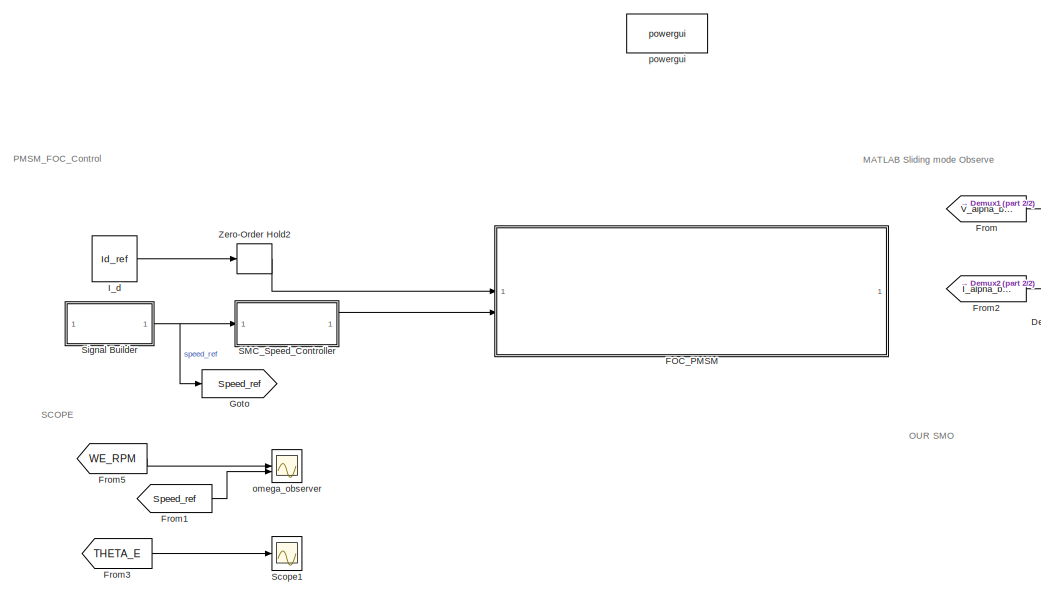
[diagram: root canvas - part 1/2, left side, full height]
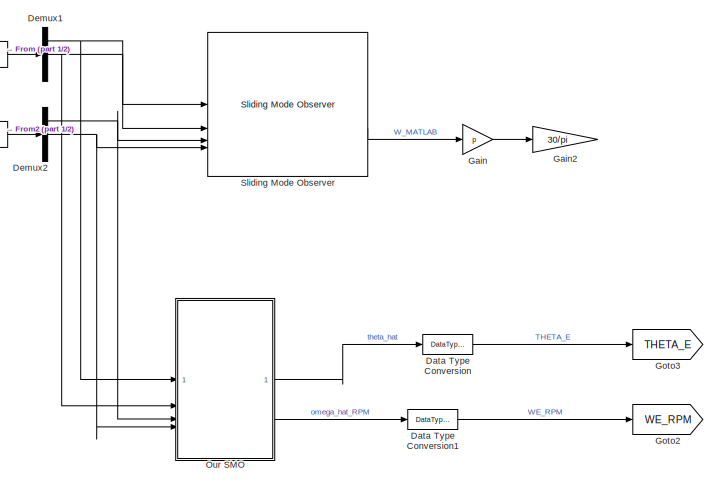
[diagram: root canvas - part 2/2, middle right region]
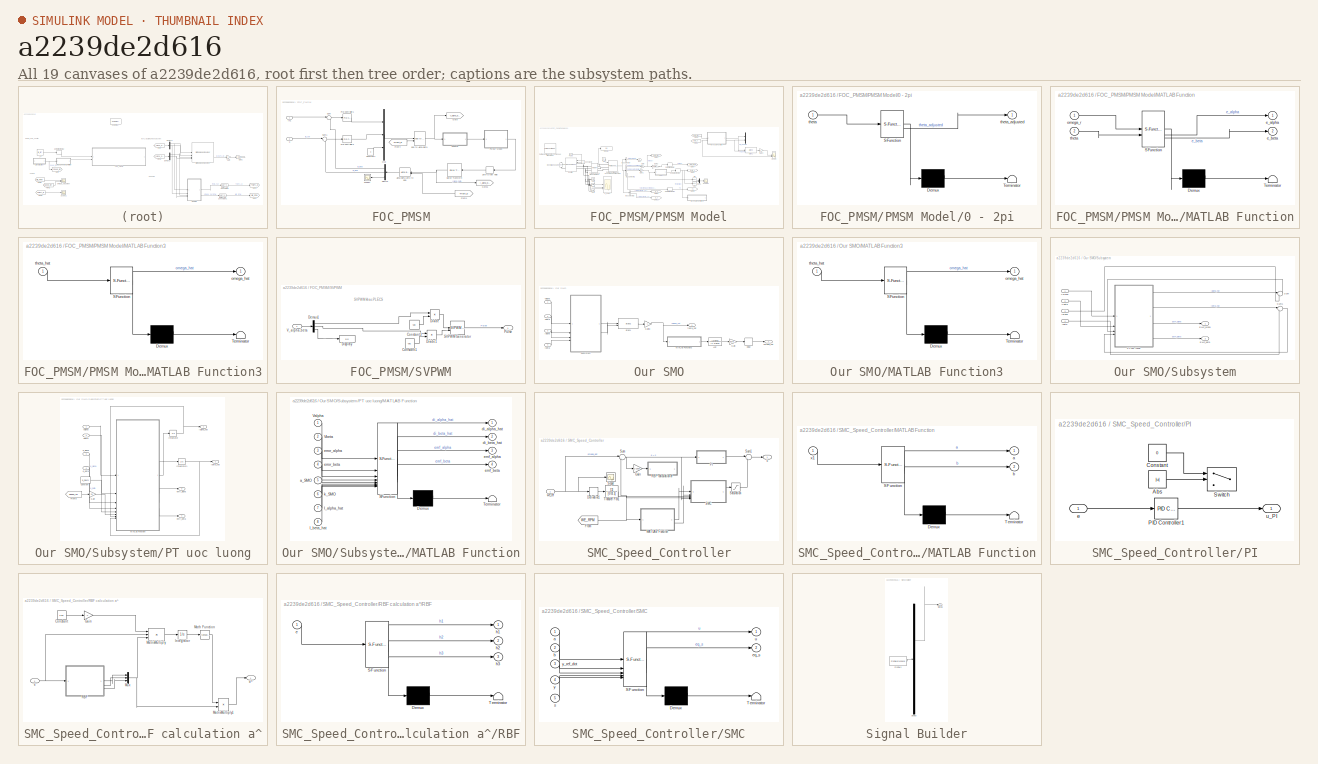
[diagram: thumbnail index - all 19 canvases of the model, root first then tree order]
MODEL slx_a2239de2d616
KIND model
CONFIG AbsTol = auto
CONFIG EnableMultiTasking = off
CONFIG FixedStep = 1e-5
CONFIG MaxStep = 1E-5
CONFIG MinStep = auto
CONFIG RelTol = 1e-4
CONFIG SampleTimeConstraint = Unconstrained
CONFIG SolverName = VariableStepAuto
CONFIG StartTime = 0.0
CONFIG StopTime = 4
BLOCK [DataTypeConversion] Data Type Conversion
  OutDataTypeStr = double
  RndMeth = Floor
  SaturateOnIntegerOverflow = off
BLOCK [DataTypeConversion] Data Type Conversion1
  OutDataTypeStr = double
  RndMeth = Floor
  SaturateOnIntegerOverflow = off
BLOCK [Demux] Demux1
  Outputs = 3
BLOCK [Demux] Demux2
  Outputs = 3
BLOCK [SubSystem] FOC_PMSM
BLOCK [Reference] FOC_PMSM/Alpha-Beta-Zero to dq0  REF=spsAlphaBetaZerotodq0Lib/Alpha-Beta-Zero
to dq0
  LibrarySourceBlock = sps_lib/Control/Alpha-Beta-Zero\nto dq0
  SourceBlock = spsAlphaBetaZerotodq0Lib/Alpha-Beta-Zero\nto dq0
  SourceType = Alpha-Beta-Zero to dq0 Transformation
BLOCK [Reference] FOC_PMSM/Clarke Transform  REF=eeTransforms/Clarke Transform
  LibrarySourceBlock = ee_sl_lib/Mathematical\nTransforms/Clarke Transform
  NameLocation = top
  SourceBlock = eeTransforms/Clarke Transform
  SourceType = Clarke Transform
BLOCK [Constant] FOC_PMSM/Constant1
  Value = 0
BLOCK [Demux] FOC_PMSM/Demux
  NameLocation = top
  Outputs = 3
BLOCK [From] FOC_PMSM/From1
  GotoTag = THETA_E
  NameLocation = top
  TagVisibility = global
BLOCK [From] FOC_PMSM/From4
  GotoTag = THETA_E
  TagVisibility = global
BLOCK [Goto] FOC_PMSM/Goto
  GotoTag = V_alpha_beta
  TagVisibility = global
BLOCK [Goto] FOC_PMSM/Goto1
  GotoTag = I_alpha_beta
  TagVisibility = global
BLOCK [Inport] FOC_PMSM/In1
BLOCK [Mux] FOC_PMSM/Mux
  DisplayOption = bar
  Inputs = 3
BLOCK [Reference] FOC_PMSM/PID Controller1  REF=slpidlib/PID Controller
  LibrarySourceBlock = simulink/Continuous/PID Controller
  SourceBlock = slpidlib/PID Controller
  SourceType = PID 1dof
BLOCK [Reference] FOC_PMSM/PID Controller3  REF=slpidlib/PID Controller
  LibrarySourceBlock = simulink/Continuous/PID Controller
  SourceBlock = slpidlib/PID Controller
  SourceType = PID 1dof
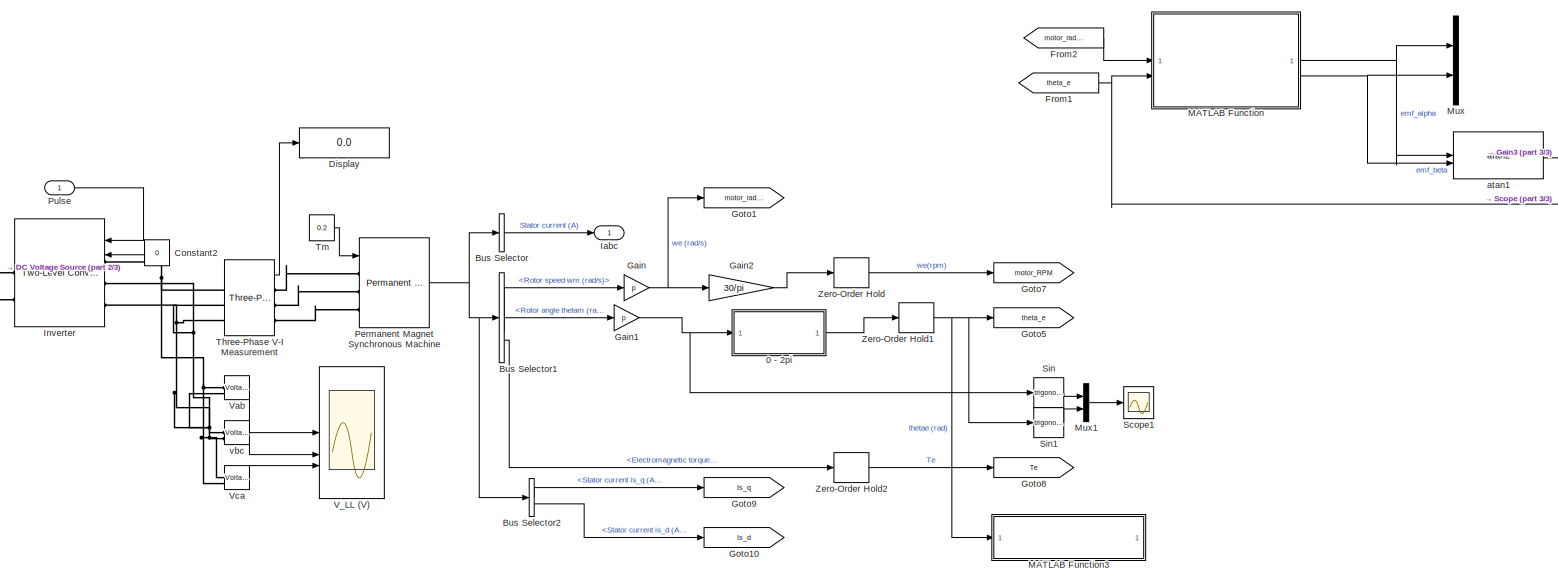
[diagram: FOC_PMSM/PMSM Model - part 1/3, most of the canvas]
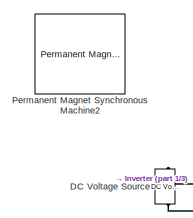
[diagram: FOC_PMSM/PMSM Model - part 2/3, middle left region]
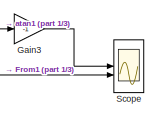
[diagram: FOC_PMSM/PMSM Model - part 3/3, middle right region]
BLOCK [SubSystem] FOC_PMSM/PMSM Model
BLOCK [SubSystem] FOC_PMSM/PMSM Model/0 - 2pi
  ErrorFcn = Stateflow.Translate.translate
  LibrarySourceBlock = simulink/User-Defined\nFunctions/MATLAB Function
  PermitHierarchicalResolution = ExplicitOnly
  SFBlockType = MATLAB Function
  TreatAsAtomicUnit = on
BLOCK [Demux] FOC_PMSM/PMSM Model/0 - 2pi/ Demux 
  Outputs = 1
BLOCK [S-Function] FOC_PMSM/PMSM Model/0 - 2pi/ SFunction 
  EnableBusSupport = on
  FunctionName = sf_sfun
  PortCounts = [1 2]
  SFcnIsStateOwnerBlock = off
  SFunctionDeploymentMode = off
  Tag = Stateflow S-Function 5
BLOCK [Terminator] FOC_PMSM/PMSM Model/0 - 2pi/ Terminator 
BLOCK [Inport] FOC_PMSM/PMSM Model/0 - 2pi/theta
BLOCK [Outport] FOC_PMSM/PMSM Model/0 - 2pi/theta_adjusted
BLOCK [BusSelector] FOC_PMSM/PMSM Model/Bus Selector
  OutputAsBus = on
  OutputSignals = Stator current is_a (A),Stator current is_b (A),Stator current is_c (A)
BLOCK [BusSelector] FOC_PMSM/PMSM Model/Bus Selector1
  OutputSignals = Rotor speed wm (rad/s),Rotor angle thetam (rad),Electromagnetic torque Te (N*m)
BLOCK [BusSelector] FOC_PMSM/PMSM Model/Bus Selector2
  OutputSignals = Stator current is_q (A),Stator current is_d (A)
BLOCK [Constant] FOC_PMSM/PMSM Model/Constant2
  NameLocation = top
  Value = 0
BLOCK [Reference] FOC_PMSM/PMSM Model/DC Voltage Source    REF=spsDCVoltageSourceLib/DC Voltage Source
  NameLocation = right
  SourceBlock = spsDCVoltageSourceLib/DC Voltage Source
  SourceType = DC Voltage Source
BLOCK [Display] FOC_PMSM/PMSM Model/Display
  Decimation = 1
BLOCK [From] FOC_PMSM/PMSM Model/From1
  GotoTag = theta_e
  TagVisibility = global
BLOCK [From] FOC_PMSM/PMSM Model/From2
  GotoTag = motor_rad_p_s
  TagVisibility = global
BLOCK [Gain] FOC_PMSM/PMSM Model/Gain
  Gain = p
  OutDataTypeStr = Inherit: Same as input
  ParamDataTypeStr = Inherit: Same as input
  SaturateOnIntegerOverflow = on
BLOCK [Gain] FOC_PMSM/PMSM Model/Gain1
  Gain = p
  OutDataTypeStr = Inherit: Same as input
  ParamDataTypeStr = Inherit: Same as input
  SaturateOnIntegerOverflow = on
BLOCK [Gain] FOC_PMSM/PMSM Model/Gain2
  Gain = 30/pi
  OutDataTypeStr = Inherit: Same as input
  ParamDataTypeStr = Inherit: Same as input
  SaturateOnIntegerOverflow = on
BLOCK [Gain] FOC_PMSM/PMSM Model/Gain3
  Gain = -1
BLOCK [Goto] FOC_PMSM/PMSM Model/Goto1
  GotoTag = motor_rad_p_s
  TagVisibility = global
BLOCK [Goto] FOC_PMSM/PMSM Model/Goto10
  GotoTag = Is_d
  TagVisibility = global
BLOCK [Goto] FOC_PMSM/PMSM Model/Goto5
  GotoTag = theta_e
  TagVisibility = global
BLOCK [Goto] FOC_PMSM/PMSM Model/Goto7
  GotoTag = motor_RPM
  TagVisibility = global
BLOCK [Goto] FOC_PMSM/PMSM Model/Goto8
  GotoTag = Te
  TagVisibility = global
BLOCK [Goto] FOC_PMSM/PMSM Model/Goto9
  GotoTag = Is_q
  TagVisibility = global
BLOCK [Outport] FOC_PMSM/PMSM Model/Iabc
BLOCK [Reference] FOC_PMSM/PMSM Model/Inverter  REF=spsTwoLevelConverterLib/Two-Level Converter
  LibrarySourceBlock = sps_lib/Power Electronics/Two-Level Converter
  SourceBlock = spsTwoLevelConverterLib/Two-Level Converter
  SourceType = Two-Level Converter
BLOCK [SubSystem] FOC_PMSM/PMSM Model/MATLAB Function
  ErrorFcn = Stateflow.Translate.translate
  LibrarySourceBlock = simulink/User-Defined\nFunctions/MATLAB Function
  PermitHierarchicalResolution = ExplicitOnly
  SFBlockType = MATLAB Function
  TreatAsAtomicUnit = on
BLOCK [Demux] FOC_PMSM/PMSM Model/MATLAB Function/ Demux 
  Outputs = 1
BLOCK [S-Function] FOC_PMSM/PMSM Model/MATLAB Function/ SFunction 
  EnableBusSupport = on
  FunctionName = sf_sfun
  PortCounts = [2 3]
  SFcnIsStateOwnerBlock = off
  SFunctionDeploymentMode = off
  Tag = Stateflow S-Function 8
BLOCK [Terminator] FOC_PMSM/PMSM Model/MATLAB Function/ Terminator 
BLOCK [Outport] FOC_PMSM/PMSM Model/MATLAB Function/e_alpha
BLOCK [Outport] FOC_PMSM/PMSM Model/MATLAB Function/e_beta
  Port = 2
BLOCK [Inport] FOC_PMSM/PMSM Model/MATLAB Function/omega_r
BLOCK [Inport] FOC_PMSM/PMSM Model/MATLAB Function/theta
  Port = 2
BLOCK [SubSystem] FOC_PMSM/PMSM Model/MATLAB Function3
  Commented = on
  ErrorFcn = Stateflow.Translate.translate
  LibrarySourceBlock = simulink/User-Defined\nFunctions/MATLAB Function
  PermitHierarchicalResolution = ExplicitOnly
  SFBlockType = MATLAB Function
  TreatAsAtomicUnit = on
BLOCK [Demux] FOC_PMSM/PMSM Model/MATLAB Function3/ Demux 
  Outputs = 1
BLOCK [S-Function] FOC_PMSM/PMSM Model/MATLAB Function3/ SFunction 
  EnableBusSupport = on
  FunctionName = sf_sfun
  PortCounts = [1 2]
  SFcnIsStateOwnerBlock = off
  SFunctionDeploymentMode = off
  Tag = Stateflow S-Function 3
BLOCK [Terminator] FOC_PMSM/PMSM Model/MATLAB Function3/ Terminator 
BLOCK [Outport] FOC_PMSM/PMSM Model/MATLAB Function3/omega_hat
BLOCK [Inport] FOC_PMSM/PMSM Model/MATLAB Function3/theta_hat
BLOCK [Mux] FOC_PMSM/PMSM Model/Mux
  DisplayOption = bar
  Inputs = 2
BLOCK [Mux] FOC_PMSM/PMSM Model/Mux1
  Commented = on
  DisplayOption = bar
  Inputs = 2
BLOCK [Reference] FOC_PMSM/PMSM Model/Permanent Magnet Synchronous Machine  REF=spsPermanentMagnetSynchronousMachineLib/Permanent Magnet
Synchronous Machine
  LibrarySourceBlock = sps_lib/Electrical Machines/Permanent Magnet\nSynchronous Machine
  SourceBlock = spsPermanentMagnetSynchronousMachineLib/Permanent Magnet\nSynchronous Machine
  SourceType = Permanent Magnet Synchronous Machine
BLOCK [Reference] FOC_PMSM/PMSM Model/Permanent Magnet Synchronous Machine2  REF=spsPermanentMagnetSynchronousMachineLib/Permanent Magnet
Synchronous Machine
  Commented = on
  SourceBlock = spsPermanentMagnetSynchronousMachineLib/Permanent Magnet\nSynchronous Machine
  SourceType = Permanent Magnet Synchronous Machine
BLOCK [Inport] FOC_PMSM/PMSM Model/Pulse
BLOCK [Scope] FOC_PMSM/PMSM Model/Scope
  Floating = off
  NumInputPorts = 2
  ScopeSpecificationString = Simulink.scopes.TimeScopeBlockCfg('CurrentConfiguration', extmgr.ConfigurationSet(extmgr.Configuration('Core','General UI',true),extmgr.Configuration('Core','Source UI',true),extmgr.Configuration('Sources','WiredSimulink',true,'DataLoggingVariableName','ScopeData1'),extmgr.Configuration('Visuals','Time Domain',true,'SerializedDisplays',{struct('MinYLimReal','-4.31749','MaxYLimReal','7.45595','YLab...<+1495ch>
BLOCK [Scope] FOC_PMSM/PMSM Model/Scope1
  Commented = on
  Floating = off
  NumInputPorts = 1
  ScopeSpecificationString = Simulink.scopes.TimeScopeBlockCfg('CurrentConfiguration', extmgr.ConfigurationSet(extmgr.Configuration('Core','General UI',true),extmgr.Configuration('Core','Source UI',true),extmgr.Configuration('Sources','WiredSimulink',true,'DataLoggingVariableName','ScopeData1'),extmgr.Configuration('Visuals','Time Domain',true,'SerializedDisplays',{struct('MinYLimReal','-1.88525','MaxYLimReal','1.93989','YLab...<+1417ch>
BLOCK [Trigonometry] FOC_PMSM/PMSM Model/Sin
  Commented = on
BLOCK [Trigonometry] FOC_PMSM/PMSM Model/Sin1
  Commented = on
BLOCK [Reference] FOC_PMSM/PMSM Model/Three-Phase V-I Measurement  REF=spsThreePhaseVIMeasurementLib/Three-Phase
V-I Measurement
  LibrarySourceBlock = sps_lib/Sensors and Measurements/Three-Phase\nV-I Measurement
  SourceBlock = spsThreePhaseVIMeasurementLib/Three-Phase\nV-I Measurement
  SourceType = Three-Phase VI Measurement
BLOCK [Constant] FOC_PMSM/PMSM Model/Tm
  Value = 0.2
BLOCK [Scope] FOC_PMSM/PMSM Model/V_LL (V)
  Floating = off
  NumInputPorts = 3
  ScopeSpecificationString = Simulink.scopes.TimeScopeBlockCfg('CurrentConfiguration', extmgr.ConfigurationSet(extmgr.Configuration('Core','General UI',true),extmgr.Configuration('Core','Source UI',true),extmgr.Configuration('Sources','WiredSimulink',true,'DataLoggingSaveFormat','Array','DataLoggingDecimation','1','DataLoggingDecimateData',true,'DataLoggingVariableName','ScopeData1'),extmgr.Configuration('Visuals','Time Domai...<+1706ch>
BLOCK [Reference] FOC_PMSM/PMSM Model/Vab  REF=spsVoltageMeasurementLib/Voltage Measurement
  AttributesFormatString = \n
  LibrarySourceBlock = sps_lib/Sensors and Measurements/Voltage Measurement
  SourceBlock = spsVoltageMeasurementLib/Voltage Measurement
  SourceType = Voltage Measurement
  Tag = PoWeRsYsTeMmEaSuReMeNt
BLOCK [Reference] FOC_PMSM/PMSM Model/Vca  REF=spsVoltageMeasurementLib/Voltage Measurement
  AttributesFormatString = \n
  LibrarySourceBlock = sps_lib/Sensors and Measurements/Voltage Measurement
  SourceBlock = spsVoltageMeasurementLib/Voltage Measurement
  SourceType = Voltage Measurement
  Tag = PoWeRsYsTeMmEaSuReMeNt
BLOCK [ZeroOrderHold] FOC_PMSM/PMSM Model/Zero-Order Hold
  NameLocation = top
  SampleTime = Ts
BLOCK [ZeroOrderHold] FOC_PMSM/PMSM Model/Zero-Order Hold1
  NameLocation = top
  SampleTime = Ts
BLOCK [ZeroOrderHold] FOC_PMSM/PMSM Model/Zero-Order Hold2
  NameLocation = top
  SampleTime = Ts
BLOCK [Reference] FOC_PMSM/PMSM Model/atan1  REF=mcbcontrolslib/atan2
  SourceBlock = mcbcontrolslib/atan2
  SourceType = atan2
BLOCK [Reference] FOC_PMSM/PMSM Model/vbc  REF=spsVoltageMeasurementLib/Voltage Measurement
  AttributesFormatString = \n
  LibrarySourceBlock = sps_lib/Sensors and Measurements/Voltage Measurement
  SourceBlock = spsVoltageMeasurementLib/Voltage Measurement
  SourceType = Voltage Measurement
  Tag = PoWeRsYsTeMmEaSuReMeNt
BLOCK [SubSystem] FOC_PMSM/SVPWM
BLOCK [Constant] FOC_PMSM/SVPWM/Constant1
  Value = Vdc
BLOCK [Constant] FOC_PMSM/SVPWM/Constant3
  Value = Vdc
BLOCK [Demux] FOC_PMSM/SVPWM/Demux1
  Outputs = 3
BLOCK [Display] FOC_PMSM/SVPWM/Display
  Decimation = 1
BLOCK [Product] FOC_PMSM/SVPWM/Divide
  Inputs = */
BLOCK [Product] FOC_PMSM/SVPWM/Divide1
  Inputs = */
BLOCK [Outport] FOC_PMSM/SVPWM/Pulse
  NameLocation = top
BLOCK [Reference] FOC_PMSM/SVPWM/SVPWM Generator  REF=spsSVPWMGenerator2LevelLib/SVPWM Generator
(2-Level)
  LibrarySourceBlock = sps_lib/Power Electronics/Power Electronics Control/SVPWM Generator\n(2-Level)
  SourceBlock = spsSVPWMGenerator2LevelLib/SVPWM Generator\n(2-Level)
  SourceType = SVPWM Generator (2-Level)
BLOCK [Inport] FOC_PMSM/SVPWM/V_alpha,beta
BLOCK [Scope] FOC_PMSM/Scope4
  Floating = off
  NameLocation = top
  NumInputPorts = 1
  ScopeSpecificationString = Simulink.scopes.TimeScopeBlockCfg('CurrentConfiguration', extmgr.ConfigurationSet(extmgr.Configuration('Core','General UI',true),extmgr.Configuration('Core','Source UI',true),extmgr.Configuration('Sources','WiredSimulink',true,'DataLoggingVariableName','ScopeData3'),extmgr.Configuration('Visuals','Time Domain',true,'SerializedDisplays',{struct('MinYLimReal','-1.00000','MaxYLimReal','1.00000','YLab...<+1366ch>
BLOCK [Sum] FOC_PMSM/Sum
  Inputs = |+-
BLOCK [Sum] FOC_PMSM/Sum1
  Inputs = |+-
BLOCK [ZeroOrderHold] FOC_PMSM/Zero-Order Hold
  NameLocation = top
  SampleTime = Ts
BLOCK [Reference] FOC_PMSM/dq0 to Alpha-Beta  REF=spsdq0toAlphaBetaZeroLib/dq0 to
Alpha-Beta-Zero
  LibrarySourceBlock = sps_lib/Control/dq0 to\nAlpha-Beta-Zero
  SourceBlock = spsdq0toAlphaBetaZeroLib/dq0 to\nAlpha-Beta-Zero
  SourceType = dq0 to Alpha-Beta-Zero Transformation
BLOCK [Inport] FOC_PMSM/u
  Port = 2
BLOCK [From] From
  GotoTag = V_alpha_beta
  TagVisibility = global
BLOCK [From] From1
  GotoTag = Speed_ref
  TagVisibility = global
BLOCK [From] From2
  GotoTag = I_alpha_beta
  TagVisibility = global
BLOCK [From] From3
  GotoTag = THETA_E
  TagVisibility = global
BLOCK [From] From5
  GotoTag = WE_RPM
  TagVisibility = global
BLOCK [Gain] Gain
  Gain = p
BLOCK [Gain] Gain2
  Gain = 30/pi
  OutDataTypeStr = Inherit: Same as input
  ParamDataTypeStr = Inherit: Same as input
  SaturateOnIntegerOverflow = on
BLOCK [Goto] Goto
  GotoTag = Speed_ref
  TagVisibility = global
BLOCK [Goto] Goto2
  GotoTag = WE_RPM
  TagVisibility = global
BLOCK [Goto] Goto3
  GotoTag = THETA_E
  TagVisibility = global
BLOCK [Constant] I_d
  Value = Id_ref
BLOCK [SubSystem] Our SMO
BLOCK [Delay] Our SMO/Delay
  DelayLength = 1
  InputPortMap = u0
BLOCK [Gain] Our SMO/Gain
  Gain = 1/sqrt((2*pi*5^2)/(2*pi*5^2+1))
BLOCK [Gain] Our SMO/Gain3
  Gain = -1
BLOCK [Inport] Our SMO/Ialpha
  Port = 3
BLOCK [Inport] Our SMO/Ibeta
  Port = 4
BLOCK [TransferFcn] Our SMO/LPF
  Denominator = [1 2*pi*5]
  Numerator = [2*pi*5]
BLOCK [SubSystem] Our SMO/MATLAB Function3
  ErrorFcn = Stateflow.Translate.translate
  LibrarySourceBlock = simulink/User-Defined\nFunctions/MATLAB Function
  PermitHierarchicalResolution = ExplicitOnly
  SFBlockType = MATLAB Function
  TreatAsAtomicUnit = on
BLOCK [Demux] Our SMO/MATLAB Function3/ Demux 
  Outputs = 1
BLOCK [S-Function] Our SMO/MATLAB Function3/ SFunction 
  EnableBusSupport = on
  FunctionName = sf_sfun
  PortCounts = [1 2]
  SFcnIsStateOwnerBlock = off
  SFunctionDeploymentMode = off
  Tag = Stateflow S-Function 6
BLOCK [Terminator] Our SMO/MATLAB Function3/ Terminator 
BLOCK [Outport] Our SMO/MATLAB Function3/omega_hat
BLOCK [Inport] Our SMO/MATLAB Function3/theta_hat
BLOCK [SubSystem] Our SMO/Subsystem
BLOCK [Outport] Our SMO/Subsystem/EMF_alpha
BLOCK [Outport] Our SMO/Subsystem/EMF_beta
  Port = 2
BLOCK [Inport] Our SMO/Subsystem/Ialpha
  Port = 3
BLOCK [Inport] Our SMO/Subsystem/Ibeta
  Port = 4
BLOCK [SubSystem] Our SMO/Subsystem/PT uoc luong
BLOCK [Constant] Our SMO/Subsystem/PT uoc luong/Constant
  Value = a_SMO
BLOCK [From] Our SMO/Subsystem/PT uoc luong/From8
  GotoTag = Speed_ref
  TagVisibility = global
BLOCK [Gain] Our SMO/Subsystem/PT uoc luong/Gain
  Gain = 0.5
BLOCK [Outport] Our SMO/Subsystem/PT uoc luong/Ialpha_hat
BLOCK [Outport] Our SMO/Subsystem/PT uoc luong/Ibeta_hat
  Port = 2
BLOCK [Integrator] Our SMO/Subsystem/PT uoc luong/Integrator
BLOCK [Integrator] Our SMO/Subsystem/PT uoc luong/Integrator1
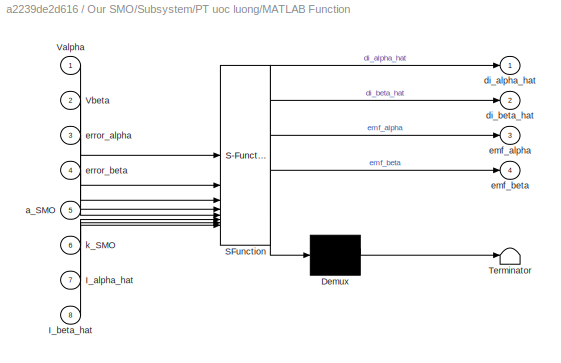
BLOCK [SubSystem] Our SMO/Subsystem/PT uoc luong/MATLAB Function
  ErrorFcn = Stateflow.Translate.translate
  LibrarySourceBlock = simulink/User-Defined\nFunctions/MATLAB Function
  PermitHierarchicalResolution = ExplicitOnly
  SFBlockType = MATLAB Function
  TreatAsAtomicUnit = on
BLOCK [Demux] Our SMO/Subsystem/PT uoc luong/MATLAB Function/ Demux 
  Outputs = 1
BLOCK [S-Function] Our SMO/Subsystem/PT uoc luong/MATLAB Function/ SFunction 
  EnableBusSupport = on
  FunctionName = sf_sfun
  PortCounts = [8 5]
  SFcnIsStateOwnerBlock = off
  SFunctionDeploymentMode = off
  Tag = Stateflow S-Function 1
BLOCK [Terminator] Our SMO/Subsystem/PT uoc luong/MATLAB Function/ Terminator 
BLOCK [Inport] Our SMO/Subsystem/PT uoc luong/MATLAB Function/I_alpha_hat
  Port = 7
BLOCK [Inport] Our SMO/Subsystem/PT uoc luong/MATLAB Function/I_beta_hat
  Port = 8
BLOCK [Inport] Our SMO/Subsystem/PT uoc luong/MATLAB Function/Valpha
BLOCK [Inport] Our SMO/Subsystem/PT uoc luong/MATLAB Function/Vbeta
  Port = 2
BLOCK [Inport] Our SMO/Subsystem/PT uoc luong/MATLAB Function/a_SMO
  Port = 5
BLOCK [Outport] Our SMO/Subsystem/PT uoc luong/MATLAB Function/di_alpha_hat
BLOCK [Outport] Our SMO/Subsystem/PT uoc luong/MATLAB Function/di_beta_hat
  Port = 2
BLOCK [Outport] Our SMO/Subsystem/PT uoc luong/MATLAB Function/emf_alpha
  Port = 3
BLOCK [Outport] Our SMO/Subsystem/PT uoc luong/MATLAB Function/emf_beta
  Port = 4
BLOCK [Inport] Our SMO/Subsystem/PT uoc luong/MATLAB Function/error_alpha
  Port = 3
BLOCK [Inport] Our SMO/Subsystem/PT uoc luong/MATLAB Function/error_beta
  Port = 4
BLOCK [Inport] Our SMO/Subsystem/PT uoc luong/MATLAB Function/k_SMO
  Port = 6
BLOCK [Inport] Our SMO/Subsystem/PT uoc luong/Valpha
BLOCK [Inport] Our SMO/Subsystem/PT uoc luong/Vbeta
  Port = 2
BLOCK [Inport] Our SMO/Subsystem/PT uoc luong/e_alpha
  Port = 3
BLOCK [Inport] Our SMO/Subsystem/PT uoc luong/e_beta
  Port = 4
BLOCK [Outport] Our SMO/Subsystem/PT uoc luong/emf_alpha
  Port = 3
BLOCK [Outport] Our SMO/Subsystem/PT uoc luong/emf_beta
  Port = 4
BLOCK [Sum] Our SMO/Subsystem/Sum
  Inputs = |+-
BLOCK [Sum] Our SMO/Subsystem/Sum1
  Inputs = |+-
BLOCK [Inport] Our SMO/Subsystem/Valpha
BLOCK [Inport] Our SMO/Subsystem/Vbeta
  Port = 2
BLOCK [Inport] Our SMO/Valpha
BLOCK [Inport] Our SMO/Vbeta
  Port = 2
BLOCK [Reference] Our SMO/atan1  REF=mcbcontrolslib/atan2
  SourceBlock = mcbcontrolslib/atan2
  SourceType = atan2
BLOCK [Outport] Our SMO/omega_hat
  Port = 2
BLOCK [Outport] Our SMO/theta_hat
BLOCK [SubSystem] SMC_Speed_Controller
BLOCK [Derivative] SMC_Speed_Controller/Derivative1
BLOCK [From] SMC_Speed_Controller/From
  GotoTag = WE_RPM
  NameLocation = top
  TagVisibility = global
BLOCK [Gain] SMC_Speed_Controller/Gain
  Gain = 1/1000
BLOCK [SubSystem] SMC_Speed_Controller/MATLAB Function
  ErrorFcn = Stateflow.Translate.translate
  LibrarySourceBlock = simulink/User-Defined\nFunctions/MATLAB Function
  PermitHierarchicalResolution = ExplicitOnly
  SFBlockType = MATLAB Function
  TreatAsAtomicUnit = on
BLOCK [Demux] SMC_Speed_Controller/MATLAB Function/ Demux 
  Outputs = 1
BLOCK [S-Function] SMC_Speed_Controller/MATLAB Function/ SFunction 
  EnableBusSupport = on
  FunctionName = sf_sfun
  Parameters = B,J,TL,lambda,p
  PortCounts = [1 3]
  SFcnIsStateOwnerBlock = off
  SFunctionDeploymentMode = off
  Tag = Stateflow S-Function 9
BLOCK [Terminator] SMC_Speed_Controller/MATLAB Function/ Terminator 
BLOCK [Outport] SMC_Speed_Controller/MATLAB Function/a
BLOCK [Outport] SMC_Speed_Controller/MATLAB Function/b
  Port = 2
BLOCK [Inport] SMC_Speed_Controller/MATLAB Function/x1
BLOCK [SubSystem] SMC_Speed_Controller/PI
BLOCK [Abs] SMC_Speed_Controller/PI/Abs
  Commented = on
  SaturateOnIntegerOverflow = off
BLOCK [Constant] SMC_Speed_Controller/PI/Constant
  Commented = on
  Value = 0
BLOCK [Reference] SMC_Speed_Controller/PI/PID Controller1  REF=slpidlib/PID Controller
  LibrarySourceBlock = simulink/Continuous/PID Controller
  SourceBlock = slpidlib/PID Controller
  SourceType = PID 1dof
BLOCK [Switch] SMC_Speed_Controller/PI/Switch
  Commented = on
  InputSameDT = off
  SaturateOnIntegerOverflow = off
  Threshold = 1
BLOCK [Inport] SMC_Speed_Controller/PI/e
BLOCK [Outport] SMC_Speed_Controller/PI/u_PI
BLOCK [SubSystem] SMC_Speed_Controller/RBF calculation a^
BLOCK [Constant] SMC_Speed_Controller/RBF calculation a^/Constant
  Value = 1/50
BLOCK [Gain] SMC_Speed_Controller/RBF calculation a^/Gain
  Gain = -1
BLOCK [Integrator] SMC_Speed_Controller/RBF calculation a^/Integrator
BLOCK [Math] SMC_Speed_Controller/RBF calculation a^/Math Function
  Operator = transpose
BLOCK [Product] SMC_Speed_Controller/RBF calculation a^/MatrixMultiply
  Inputs = 3
BLOCK [Product] SMC_Speed_Controller/RBF calculation a^/MatrixMultiply1
  Multiplication = Matrix(*)
BLOCK [Mux] SMC_Speed_Controller/RBF calculation a^/Mux
  DisplayOption = bar
  Inputs = 3
BLOCK [SubSystem] SMC_Speed_Controller/RBF calculation a^/RBF
  ErrorFcn = Stateflow.Translate.translate
  LibrarySourceBlock = simulink/User-Defined\nFunctions/MATLAB Function
  PermitHierarchicalResolution = ExplicitOnly
  SFBlockType = MATLAB Function
  TreatAsAtomicUnit = on
BLOCK [Demux] SMC_Speed_Controller/RBF calculation a^/RBF/ Demux 
  Outputs = 1
BLOCK [S-Function] SMC_Speed_Controller/RBF calculation a^/RBF/ SFunction 
  EnableBusSupport = on
  FunctionName = sf_sfun
  PortCounts = [1 4]
  SFcnIsStateOwnerBlock = off
  SFunctionDeploymentMode = off
  Tag = Stateflow S-Function 2
BLOCK [Terminator] SMC_Speed_Controller/RBF calculation a^/RBF/ Terminator 
BLOCK [Inport] SMC_Speed_Controller/RBF calculation a^/RBF/e
BLOCK [Outport] SMC_Speed_Controller/RBF calculation a^/RBF/h1
BLOCK [Outport] SMC_Speed_Controller/RBF calculation a^/RBF/h2
  Port = 2
BLOCK [Outport] SMC_Speed_Controller/RBF calculation a^/RBF/h3
  Port = 3
BLOCK [Outport] SMC_Speed_Controller/RBF calculation a^/a^
BLOCK [Inport] SMC_Speed_Controller/RBF calculation a^/e
BLOCK [SubSystem] SMC_Speed_Controller/SMC
  ErrorFcn = Stateflow.Translate.translate
  LibrarySourceBlock = simulink/User-Defined\nFunctions/MATLAB Function
  PermitHierarchicalResolution = ExplicitOnly
  SFBlockType = MATLAB Function
  TreatAsAtomicUnit = on
BLOCK [Demux] SMC_Speed_Controller/SMC/ Demux 
  Outputs = 1
BLOCK [S-Function] SMC_Speed_Controller/SMC/ SFunction 
  EnableBusSupport = on
  FunctionName = sf_sfun
  PortCounts = [5 3]
  SFcnIsStateOwnerBlock = off
  SFunctionDeploymentMode = off
  Tag = Stateflow S-Function 10
BLOCK [Terminator] SMC_Speed_Controller/SMC/ Terminator 
BLOCK [Inport] SMC_Speed_Controller/SMC/a
BLOCK [Inport] SMC_Speed_Controller/SMC/b
  Port = 2
BLOCK [Outport] SMC_Speed_Controller/SMC/eq_s
  Port = 2
BLOCK [Inport] SMC_Speed_Controller/SMC/s
  Port = 5
BLOCK [Outport] SMC_Speed_Controller/SMC/u
BLOCK [Inport] SMC_Speed_Controller/SMC/y
  Port = 4
BLOCK [Inport] SMC_Speed_Controller/SMC/y_ref_dot
  Port = 3
BLOCK [Saturate] SMC_Speed_Controller/Saturation
  LowerLimit = -3
  UpperLimit = 3
BLOCK [Scope] SMC_Speed_Controller/Scope
  Floating = off
  NumInputPorts = 1
  ScopeSpecificationString = Simulink.scopes.TimeScopeBlockCfg('CurrentConfiguration', extmgr.ConfigurationSet(extmgr.Configuration('Core','General UI',true),extmgr.Configuration('Core','Source UI',true),extmgr.Configuration('Sources','WiredSimulink',true,'DataLoggingVariableName','ScopeData3'),extmgr.Configuration('Visuals','Time Domain',true,'SerializedDisplays',{struct('MinYLimReal','792.6265','MaxYLimReal','803.29978','YL...<+1422ch>
BLOCK [Sum] SMC_Speed_Controller/Sum
  Inputs = |+-
BLOCK [Sum] SMC_Speed_Controller/Sum1
  Inputs = |++
BLOCK [TransferFcn] SMC_Speed_Controller/Transfer Fcn1
  Denominator = [0.01 1]
BLOCK [Outport] SMC_Speed_Controller/u
BLOCK [Inport] SMC_Speed_Controller/we_ref
BLOCK [Scope] Scope1
  Floating = off
  NumInputPorts = 1
  ScopeSpecificationString = Simulink.scopes.TimeScopeBlockCfg('CurrentConfiguration', extmgr.ConfigurationSet(extmgr.Configuration('Core','General UI',true),extmgr.Configuration('Core','Source UI',true),extmgr.Configuration('Sources','WiredSimulink',true,'DataLoggingVariableName','ScopeData2'),extmgr.Configuration('Visuals','Time Domain',true,'SerializedDisplays',{struct('MinYLimReal','-3.92681','MaxYLimReal','3.92689','YLab...<+1368ch>
BLOCK [SubSystem] Signal Builder
  ClipboardFcn = sigbuilder_block('clipboard');
  CloseFcn = sigbuilder_block('close');
  ContinueFcn = sigbuilder_block('continue');
  CopyFcn = sigbuilder_block('copy');
  DeleteFcn = sigbuilder_block('delete');
  LoadFcn = sigbuilder_block('load');
  MaskHideContents = on
  ModelCloseFcn = sigbuilder_block('modelClose');
  NameChangeFcn = sigbuilder_block('namechange');
  OpenFcn = sigbuilder_block('open',[437.6 199.2 550.4 400 ]);
  PauseFcn = sigbuilder_block('pause');
  PreSaveFcn = sigbuilder_block('preSave');
  StartFcn = sigbuilder_block('start');
  StopFcn = sigbuilder_block('stop');
  Tag = STV Subsys
BLOCK [Demux] Signal Builder/Demux
  DisplayOption = none
  Outputs = 1
  Tag = STV Demux
BLOCK [FromWorkspace] Signal Builder/FromWs
  Tag = STV FromWs
  VariableName = tuvar
BLOCK [Outport] Signal Builder/Signal 1
  Tag = STV Outport
BLOCK [Reference] Sliding Mode Observer  REF=mcbsensorlessestimatorlib/Sliding Mode Observer
  LibrarySourceBlock = mcblib/Sensorless Estimators/Sliding Mode Observer
  SourceBlock = mcbsensorlessestimatorlib/Sliding Mode Observer
  SourceType = Sliding Mode Observer
BLOCK [ZeroOrderHold] Zero-Order Hold2
  NameLocation = top
  SampleTime = Ts
BLOCK [Scope] omega_observer
  Floating = off
  NumInputPorts = 2
  ScopeSpecificationString = Simulink.scopes.TimeScopeBlockCfg('CurrentConfiguration', extmgr.ConfigurationSet(extmgr.Configuration('Core','General UI',true),extmgr.Configuration('Core','Source UI',true),extmgr.Configuration('Sources','WiredSimulink',true,'DataLoggingVariableName','ScopeData1'),extmgr.Configuration('Visuals','Time Domain',true,'SerializedDisplays',{struct('MinYLimReal','709.24678','MaxYLimReal','822.12392','Y...<+1437ch>
BLOCK [Reference] powergui  REF=sps_lib/powergui
  Priority = 1
  SourceBlock = sps_lib/powergui
  SourceType = PSB option menu block
ANNOTATION (root): MATLAB Sliding mode Observe
ANNOTATION (root): OUR SMO
ANNOTATION (root): PMSM_FOC_Control
ANNOTATION (root): SCOPE
ANNOTATION FOC_PMSM/SVPWM: SVPWM khac PLECS
LINE Data Type Conversion1:1 -> Goto2:1
LINE Data Type Conversion:1 -> Goto3:1
NET Demux1:1 -> Our SMO:1, Sliding Mode Observer:1
NET Demux1:2 -> Our SMO:2, Sliding Mode Observer:2
NET Demux2:1 -> Our SMO:3, Sliding Mode Observer:3
NET Demux2:2 -> Our SMO:4, Sliding Mode Observer:4
LINE FOC_PMSM/Alpha-Beta-Zero to dq0:1 -> FOC_PMSM/Demux:1
NET FOC_PMSM/Clarke Transform:1 -> FOC_PMSM/Alpha-Beta-Zero to dq0:1, FOC_PMSM/Goto1:1
LINE FOC_PMSM/Constant1:1 -> FOC_PMSM/Mux:3
LINE FOC_PMSM/Demux:1 -> FOC_PMSM/Sum:2
LINE FOC_PMSM/Demux:2 -> FOC_PMSM/Sum1:2
LINE FOC_PMSM/Demux:3 -> FOC_PMSM/Scope4:1
LINE FOC_PMSM/From1:1 -> FOC_PMSM/Alpha-Beta-Zero to dq0:2
LINE FOC_PMSM/From4:1 -> FOC_PMSM/dq0 to Alpha-Beta:2
LINE FOC_PMSM/In1:1 -> FOC_PMSM/Sum:1
LINE FOC_PMSM/Mux:1 -> FOC_PMSM/dq0 to Alpha-Beta:1
LINE FOC_PMSM/PID Controller1:1 -> FOC_PMSM/Mux:1
LINE FOC_PMSM/PID Controller3:1 -> FOC_PMSM/Mux:2
LINE FOC_PMSM/PMSM Model/0 - 2pi:1 -> FOC_PMSM/PMSM Model/Zero-Order Hold1:1
LINE FOC_PMSM/PMSM Model/Bus Selector1:1 -> FOC_PMSM/PMSM Model/Gain:1
LINE FOC_PMSM/PMSM Model/Bus Selector1:2 -> FOC_PMSM/PMSM Model/Gain1:1
LINE FOC_PMSM/PMSM Model/Bus Selector1:3 -> FOC_PMSM/PMSM Model/Zero-Order Hold2:1
LINE FOC_PMSM/PMSM Model/Bus Selector2:1 -> FOC_PMSM/PMSM Model/Goto9:1
LINE FOC_PMSM/PMSM Model/Bus Selector2:2 -> FOC_PMSM/PMSM Model/Goto10:1
LINE FOC_PMSM/PMSM Model/Bus Selector:1 -> FOC_PMSM/PMSM Model/Iabc:1
LINE FOC_PMSM/PMSM Model/Constant2:1 -> FOC_PMSM/PMSM Model/Inverter:2
NET FOC_PMSM/PMSM Model/From1:1 -> FOC_PMSM/PMSM Model/MATLAB Function:2, FOC_PMSM/PMSM Model/Scope:2
LINE FOC_PMSM/PMSM Model/From2:1 -> FOC_PMSM/PMSM Model/MATLAB Function:1
NET FOC_PMSM/PMSM Model/Gain1:1 -> FOC_PMSM/PMSM Model/0 - 2pi:1, FOC_PMSM/PMSM Model/Sin:1
LINE FOC_PMSM/PMSM Model/Gain2:1 -> FOC_PMSM/PMSM Model/Zero-Order Hold:1
LINE FOC_PMSM/PMSM Model/Gain3:1 -> FOC_PMSM/PMSM Model/Scope:1
NET FOC_PMSM/PMSM Model/Gain:1 -> FOC_PMSM/PMSM Model/Gain2:1, FOC_PMSM/PMSM Model/Goto1:1
NET FOC_PMSM/PMSM Model/MATLAB Function:1 -> FOC_PMSM/PMSM Model/Mux:1, FOC_PMSM/PMSM Model/atan1:1
NET FOC_PMSM/PMSM Model/MATLAB Function:2 -> FOC_PMSM/PMSM Model/Mux:2, FOC_PMSM/PMSM Model/atan1:2
LINE FOC_PMSM/PMSM Model/Mux1:1 -> FOC_PMSM/PMSM Model/Scope1:1
NET FOC_PMSM/PMSM Model/Permanent Magnet Synchronous Machine:1 -> FOC_PMSM/PMSM Model/Bus Selector1:1, FOC_PMSM/PMSM Model/Bus Selector2:1, FOC_PMSM/PMSM Model/Bus Selector:1
LINE FOC_PMSM/PMSM Model/Pulse:1 -> FOC_PMSM/PMSM Model/Inverter:1
LINE FOC_PMSM/PMSM Model/Sin1:1 -> FOC_PMSM/PMSM Model/Mux1:2
LINE FOC_PMSM/PMSM Model/Sin:1 -> FOC_PMSM/PMSM Model/Mux1:1
LINE FOC_PMSM/PMSM Model/Three-Phase V-I Measurement:1 -> FOC_PMSM/PMSM Model/Display:1
LINE FOC_PMSM/PMSM Model/Tm:1 -> FOC_PMSM/PMSM Model/Permanent Magnet Synchronous Machine:1
LINE FOC_PMSM/PMSM Model/Vab:1 -> FOC_PMSM/PMSM Model/V_LL (V):1
LINE FOC_PMSM/PMSM Model/Vca:1 -> FOC_PMSM/PMSM Model/V_LL (V):3
NET FOC_PMSM/PMSM Model/Zero-Order Hold1:1 -> FOC_PMSM/PMSM Model/Goto5:1, FOC_PMSM/PMSM Model/MATLAB Function3:1, FOC_PMSM/PMSM Model/Sin1:1
LINE FOC_PMSM/PMSM Model/Zero-Order Hold2:1 -> FOC_PMSM/PMSM Model/Goto8:1
LINE FOC_PMSM/PMSM Model/Zero-Order Hold:1 -> FOC_PMSM/PMSM Model/Goto7:1
LINE FOC_PMSM/PMSM Model/atan1:1 -> FOC_PMSM/PMSM Model/Gain3:1
LINE FOC_PMSM/PMSM Model/vbc:1 -> FOC_PMSM/PMSM Model/V_LL (V):2
LINE FOC_PMSM/PMSM Model:1 -> FOC_PMSM/Zero-Order Hold:1
LINE FOC_PMSM/SVPWM/Constant1:1 -> FOC_PMSM/SVPWM/Divide1:2
LINE FOC_PMSM/SVPWM/Constant3:1 -> FOC_PMSM/SVPWM/Divide:2
LINE FOC_PMSM/SVPWM/Demux1:1 -> FOC_PMSM/SVPWM/Divide:1
LINE FOC_PMSM/SVPWM/Demux1:2 -> FOC_PMSM/SVPWM/Divide1:1
LINE FOC_PMSM/SVPWM/Demux1:3 -> FOC_PMSM/SVPWM/Display:1
LINE FOC_PMSM/SVPWM/Divide1:1 -> FOC_PMSM/SVPWM/SVPWM Generator:2
LINE FOC_PMSM/SVPWM/Divide:1 -> FOC_PMSM/SVPWM/SVPWM Generator:1
LINE FOC_PMSM/SVPWM/SVPWM Generator:1 -> FOC_PMSM/SVPWM/Pulse:1
LINE FOC_PMSM/SVPWM/V_alpha,beta:1 -> FOC_PMSM/SVPWM/Demux1:1
LINE FOC_PMSM/SVPWM:1 -> FOC_PMSM/PMSM Model:1
LINE FOC_PMSM/Sum1:1 -> FOC_PMSM/PID Controller3:1
LINE FOC_PMSM/Sum:1 -> FOC_PMSM/PID Controller1:1
LINE FOC_PMSM/Zero-Order Hold:1 -> FOC_PMSM/Clarke Transform:1
NET FOC_PMSM/dq0 to Alpha-Beta:1 -> FOC_PMSM/Goto:1, FOC_PMSM/SVPWM:1
LINE FOC_PMSM/u:1 -> FOC_PMSM/Sum1:1
LINE From1:1 -> omega_observer:2
LINE From2:1 -> Demux2:1
LINE From3:1 -> Scope1:1
LINE From5:1 -> omega_observer:1
LINE From:1 -> Demux1:1
LINE Gain:1 -> Gain2:1
LINE I_d:1 -> Zero-Order Hold2:1
LINE Our SMO/Delay:1 -> Our SMO/omega_hat:1
NET Our SMO/Gain3:1 -> Our SMO/MATLAB Function3:1, Our SMO/theta_hat:1
LINE Our SMO/Gain:1 -> Our SMO/Delay:1
LINE Our SMO/Ialpha:1 -> Our SMO/Subsystem:3
LINE Our SMO/Ibeta:1 -> Our SMO/Subsystem:4
LINE Our SMO/LPF:1 -> Our SMO/Gain:1
LINE Our SMO/MATLAB Function3:1 -> Our SMO/LPF:1
LINE Our SMO/Subsystem/Ialpha:1 -> Our SMO/Subsystem/Sum:2
LINE Our SMO/Subsystem/Ibeta:1 -> Our SMO/Subsystem/Sum1:2
LINE Our SMO/Subsystem/PT uoc luong/Constant:1 -> Our SMO/Subsystem/PT uoc luong/MATLAB Function:5
LINE Our SMO/Subsystem/PT uoc luong/From8:1 -> Our SMO/Subsystem/PT uoc luong/Gain:1
LINE Our SMO/Subsystem/PT uoc luong/Gain:1 -> Our SMO/Subsystem/PT uoc luong/MATLAB Function:6
NET Our SMO/Subsystem/PT uoc luong/Integrator1:1 -> Our SMO/Subsystem/PT uoc luong/Ibeta_hat:1, Our SMO/Subsystem/PT uoc luong/MATLAB Function:8
NET Our SMO/Subsystem/PT uoc luong/Integrator:1 -> Our SMO/Subsystem/PT uoc luong/Ialpha_hat:1, Our SMO/Subsystem/PT uoc luong/MATLAB Function:7
LINE Our SMO/Subsystem/PT uoc luong/MATLAB Function:1 -> Our SMO/Subsystem/PT uoc luong/Integrator:1
LINE Our SMO/Subsystem/PT uoc luong/MATLAB Function:2 -> Our SMO/Subsystem/PT uoc luong/Integrator1:1
LINE Our SMO/Subsystem/PT uoc luong/MATLAB Function:3 -> Our SMO/Subsystem/PT uoc luong/emf_alpha:1
LINE Our SMO/Subsystem/PT uoc luong/MATLAB Function:4 -> Our SMO/Subsystem/PT uoc luong/emf_beta:1
LINE Our SMO/Subsystem/PT uoc luong/Valpha:1 -> Our SMO/Subsystem/PT uoc luong/MATLAB Function:1
LINE Our SMO/Subsystem/PT uoc luong/Vbeta:1 -> Our SMO/Subsystem/PT uoc luong/MATLAB Function:2
LINE Our SMO/Subsystem/PT uoc luong/e_alpha:1 -> Our SMO/Subsystem/PT uoc luong/MATLAB Function:3
LINE Our SMO/Subsystem/PT uoc luong/e_beta:1 -> Our SMO/Subsystem/PT uoc luong/MATLAB Function:4
LINE Our SMO/Subsystem/PT uoc luong:1 -> Our SMO/Subsystem/Sum:1
LINE Our SMO/Subsystem/PT uoc luong:2 -> Our SMO/Subsystem/Sum1:1
LINE Our SMO/Subsystem/PT uoc luong:3 -> Our SMO/Subsystem/EMF_alpha:1
LINE Our SMO/Subsystem/PT uoc luong:4 -> Our SMO/Subsystem/EMF_beta:1
LINE Our SMO/Subsystem/Sum1:1 -> Our SMO/Subsystem/PT uoc luong:4
LINE Our SMO/Subsystem/Sum:1 -> Our SMO/Subsystem/PT uoc luong:3
LINE Our SMO/Subsystem/Valpha:1 -> Our SMO/Subsystem/PT uoc luong:1
LINE Our SMO/Subsystem/Vbeta:1 -> Our SMO/Subsystem/PT uoc luong:2
LINE Our SMO/Subsystem:1 -> Our SMO/atan1:1
LINE Our SMO/Subsystem:2 -> Our SMO/atan1:2
LINE Our SMO/Valpha:1 -> Our SMO/Subsystem:1
LINE Our SMO/Vbeta:1 -> Our SMO/Subsystem:2
LINE Our SMO/atan1:1 -> Our SMO/Gain3:1
LINE Our SMO:1 -> Data Type Conversion:1
LINE Our SMO:2 -> Data Type Conversion1:1
LINE SMC_Speed_Controller/Derivative1:1 -> SMC_Speed_Controller/Transfer Fcn1:1
NET SMC_Speed_Controller/From:1 -> SMC_Speed_Controller/MATLAB Function:1, SMC_Speed_Controller/SMC:4, SMC_Speed_Controller/Sum:2
LINE SMC_Speed_Controller/Gain:1 -> SMC_Speed_Controller/RBF calculation a^:1
LINE SMC_Speed_Controller/MATLAB Function:1 -> SMC_Speed_Controller/SMC:1
LINE SMC_Speed_Controller/MATLAB Function:2 -> SMC_Speed_Controller/SMC:2
LINE SMC_Speed_Controller/PI/Abs:1 -> SMC_Speed_Controller/PI/Switch:2
LINE SMC_Speed_Controller/PI/Constant:1 -> SMC_Speed_Controller/PI/Switch:1
LINE SMC_Speed_Controller/PI/PID Controller1:1 -> SMC_Speed_Controller/PI/u_PI:1
LINE SMC_Speed_Controller/PI/e:1 -> SMC_Speed_Controller/PI/PID Controller1:1
LINE SMC_Speed_Controller/PI:1 -> SMC_Speed_Controller/Sum1:1
LINE SMC_Speed_Controller/RBF calculation a^/Constant:1 -> SMC_Speed_Controller/RBF calculation a^/Gain:1
LINE SMC_Speed_Controller/RBF calculation a^/Gain:1 -> SMC_Speed_Controller/RBF calculation a^/MatrixMultiply:1
LINE SMC_Speed_Controller/RBF calculation a^/Integrator:1 -> SMC_Speed_Controller/RBF calculation a^/Math Function:1
LINE SMC_Speed_Controller/RBF calculation a^/Math Function:1 -> SMC_Speed_Controller/RBF calculation a^/MatrixMultiply1:1
LINE SMC_Speed_Controller/RBF calculation a^/MatrixMultiply1:1 -> SMC_Speed_Controller/RBF calculation a^/a^:1
LINE SMC_Speed_Controller/RBF calculation a^/MatrixMultiply:1 -> SMC_Speed_Controller/RBF calculation a^/Integrator:1
NET SMC_Speed_Controller/RBF calculation a^/Mux:1 -> SMC_Speed_Controller/RBF calculation a^/MatrixMultiply1:2, SMC_Speed_Controller/RBF calculation a^/MatrixMultiply:3
LINE SMC_Speed_Controller/RBF calculation a^/RBF:1 -> SMC_Speed_Controller/RBF calculation a^/Mux:1
LINE SMC_Speed_Controller/RBF calculation a^/RBF:2 -> SMC_Speed_Controller/RBF calculation a^/Mux:2
LINE SMC_Speed_Controller/RBF calculation a^/RBF:3 -> SMC_Speed_Controller/RBF calculation a^/Mux:3
NET SMC_Speed_Controller/RBF calculation a^/e:1 -> SMC_Speed_Controller/RBF calculation a^/MatrixMultiply:2, SMC_Speed_Controller/RBF calculation a^/RBF:1
LINE SMC_Speed_Controller/SMC:1 -> SMC_Speed_Controller/Saturation:1
LINE SMC_Speed_Controller/Saturation:1 -> SMC_Speed_Controller/Sum1:2
LINE SMC_Speed_Controller/Sum1:1 -> SMC_Speed_Controller/u:1
NET SMC_Speed_Controller/Sum:1 -> SMC_Speed_Controller/Gain:1, SMC_Speed_Controller/PI:1, SMC_Speed_Controller/SMC:5
LINE SMC_Speed_Controller/Transfer Fcn1:1 -> SMC_Speed_Controller/SMC:3
NET SMC_Speed_Controller/we_ref:1 -> SMC_Speed_Controller/Derivative1:1, SMC_Speed_Controller/Scope:1, SMC_Speed_Controller/Sum:1
LINE SMC_Speed_Controller:1 -> FOC_PMSM:2
NET Signal Builder:1 -> Goto:1, SMC_Speed_Controller:1
LINE Sliding Mode Observer:2 -> Gain:1
LINE Zero-Order Hold2:1 -> FOC_PMSM:1
PLINE FOC_PMSM/PMSM Model/DC Voltage Source  :LConn1 -- FOC_PMSM/PMSM Model/Inverter:RConn2
PLINE FOC_PMSM/PMSM Model/DC Voltage Source  :RConn1 -- FOC_PMSM/PMSM Model/Inverter:RConn1
PNET net1: FOC_PMSM/PMSM Model/Inverter:LConn1 -- FOC_PMSM/PMSM Model/Three-Phase V-I Measurement:LConn1 -- FOC_PMSM/PMSM Model/Vab:LConn1 -- FOC_PMSM/PMSM Model/Vca:LConn2
PNET net2: FOC_PMSM/PMSM Model/Inverter:LConn2 -- FOC_PMSM/PMSM Model/Three-Phase V-I Measurement:LConn2 -- FOC_PMSM/PMSM Model/Vab:LConn2 -- FOC_PMSM/PMSM Model/vbc:LConn1
PNET net3: FOC_PMSM/PMSM Model/Inverter:LConn3 -- FOC_PMSM/PMSM Model/Three-Phase V-I Measurement:LConn3 -- FOC_PMSM/PMSM Model/Vca:LConn1 -- FOC_PMSM/PMSM Model/vbc:LConn2
PLINE FOC_PMSM/PMSM Model/Permanent Magnet Synchronous Machine:LConn1 -- FOC_PMSM/PMSM Model/Three-Phase V-I Measurement:RConn1
PLINE FOC_PMSM/PMSM Model/Permanent Magnet Synchronous Machine:LConn2 -- FOC_PMSM/PMSM Model/Three-Phase V-I Measurement:RConn2
PLINE FOC_PMSM/PMSM Model/Permanent Magnet Synchronous Machine:LConn3 -- FOC_PMSM/PMSM Model/Three-Phase V-I Measurement:RConn3
note: NET lines group one-source signal fan-out (src -> all destinations, sorted); 1:1 wires keep LINE; PNET lines group multi-terminal physical nets as a canonical sorted terminal list (undirected conserving connections); 2-terminal nets keep the pairwise PLINE form
CHART Our SMO/Subsystem/PT uoc luong/MATLAB Function states=1 transitions=1
  STATE_LABEL 'eML_blk_kernel()'
  STATE_LABEL 'SCRIPT:\nfunction [di_alpha_hat, di_beta_hat, emf_alpha, emf_beta] = SMO_Observer(Valpha, Vbeta, error_alpha, error_beta, a_SMO,k_SMO, I_alpha_hat, I_beta_hat)\n    Rs = 2.875; %Stator Resistance\n    Ls = 8.5e-3; %Stator Inductance\n    k = k_SMO ;\n    a = a_SMO ;\n\n    % Tính toán H_alpha và H_beta\n    H_alpha = (2./(1 + exp(-a * error_alpha/20))) - 1;\n    H_beta = (2./(1 + exp(-a * error_beta/20))) ...<+314ch>'
CHART SMC_Speed_Controller/RBF calculation a^/RBF states=1 transitions=1
  STATE_LABEL 'eML_blk_kernel()'
  STATE_LABEL 'SCRIPT:\nfunction [h1,h2,h3] = Calculate_RBF(e)\ntheta = 0.36;\ncij = [-1 0 1];\nh1 = exp(-norm(e - cij(1))^2/theta);\nh2 = exp(-norm(e - cij(2))^2/theta);\nh3 = exp(-norm(e - cij(3))^2/theta);\n\n'
CHART FOC_PMSM/PMSM Model/MATLAB Function3 states=1 transitions=1
  STATE_LABEL 'eML_blk_kernel()'
  STATE_LABEL 'SCRIPT:\nfunction omega_hat = CalculateOmega(theta_hat)\n    % Khởi tạo biến persistent để lưu trữ giá trị theta_hat của bước trước\n    persistent theta_hat_prev delta_theta;\n    if isempty(theta_hat_prev)\n        theta_hat_prev = theta_hat;\n    end\n\n    if isempty(delta_theta)\n        delta_theta = 0;\n    end\n    % Thời gian lấy mẫu, điều chỉnh theo hệ thống thực tế của bạn\n    Ts = 0.0001;\n    \n  ...<+385ch>'
CHART FOC_PMSM/PMSM Model/0 - 2pi states=1 transitions=1
  STATE_LABEL 'eML_blk_kernel()'
  STATE_LABEL 'SCRIPT:\nfunction theta_adjusted = AdjustTheta(theta)\n    % Điều chỉnh giá trị góc để nằm trong khoảng [-pi, pi]\n    theta_adjusted = mod(theta + pi, 2*pi) - pi;\nend\n'
CHART Our SMO/MATLAB Function3 states=1 transitions=1
  STATE_LABEL 'eML_blk_kernel()'
  STATE_LABEL 'SCRIPT:\nfunction omega_hat = CalculateOmega(theta_hat)\n    % Khởi tạo biến persistent để lưu trữ giá trị theta_hat của bước trước\n    persistent theta_hat_prev delta_theta;\n    if isempty(theta_hat_prev)\n        theta_hat_prev = theta_hat +0.00001;\n    end\n\n    if isempty(delta_theta)\n        delta_theta = 0;\n    end\n    % Thời gian lấy mẫu, điều chỉnh theo hệ thống thực tế của bạn\n    Ts = 0.0001...<+428ch>'
CHART FOC_PMSM/PMSM Model/MATLAB Function states=1 transitions=1
  STATE_LABEL 'eML_blk_kernel()'
  STATE_LABEL 'SCRIPT:\nfunction [e_alpha, e_beta] = CalculateEMF(omega_r, theta)\n    % Tham số từ thông\n    lambda_f = 0.175;\n\n    % Tính toán e_alpha và e_beta\n    e_alpha = -lambda_f * omega_r * sin(theta);\n    e_beta = lambda_f * omega_r * cos(theta);\nend\n'
CHART SMC_Speed_Controller/MATLAB Function states=1 transitions=1
  STATE_LABEL 'eML_blk_kernel()'
  STATE_LABEL 'SCRIPT:\nfunction [a,b] = Calculate_a_b(J, TL, B, p, lambda, x1)\n\na = (1/J)*(-TL-B*x1);\nb = (1/J)*(3/2)*p*lambda;\n'
CHART SMC_Speed_Controller/SMC states=1 transitions=1
  STATE_LABEL 'eML_blk_kernel()'
  STATE_LABEL 'SCRIPT:\nfunction [u,eq_s] = fcn(a,b,y_ref_dot,y,s)\n%Parameter of eq_s_new\nn = 2;\nk = 1000;\nm = 4;\ndel = 10;\nep = 1;\npsi = 0.1;\n% Tính toán hàm eq_s_new\neq_s_new = (k) / (ep + (1 + 1 / (abs(s/20)^m) - ep) * (1 + abs(s/20 + psi)^-n));\neq_s = k/(ep+(1+1/abs(s/400)-ep)*exp(-psi*abs(s/400)));\n%eq_s = 10*abs(s);\nu = (1/b)*(-a + y_ref_dot + eq_s*sat(s));\n\nfunction y = sat(x)\n    if(x > 1)\n        y = 1;\n...<+68ch>'
CHART  states=0 transitions=0
CHART  states=0 transitions=0
CHART  states=0 transitions=0
CHART  states=0 transitions=0
CHART  states=0 transitions=0
CHART  states=0 transitions=0
CHART  states=0 transitions=0
CHART  states=0 transitions=0
